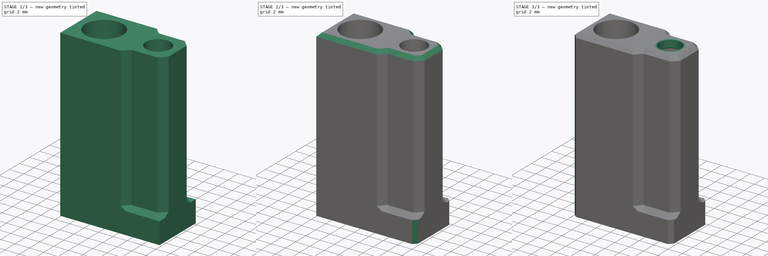
[diagram: build sequence overview — one tinted view per stage of 3, left to right]
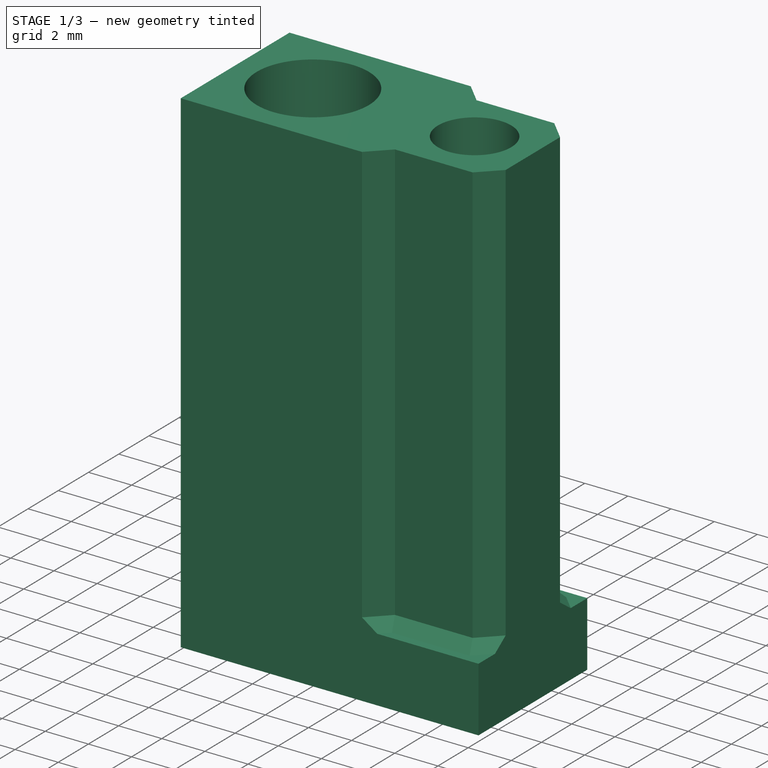
[diagram: stage 1 of 3 — iso view after this stage's code; geometry added in this stage tinted green]
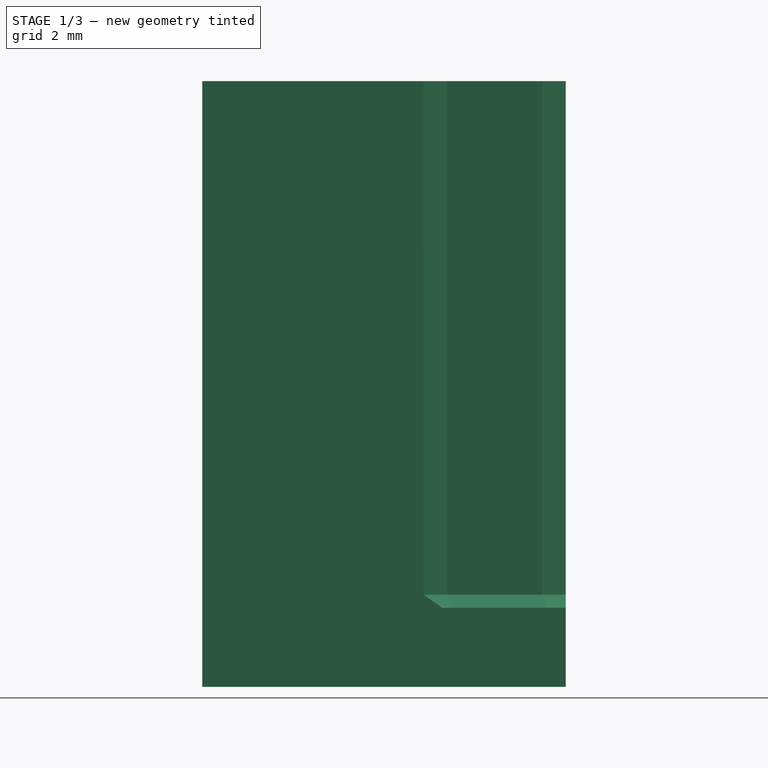
[diagram: stage 1 of 3 — front view after this stage's code; geometry added in this stage tinted green]
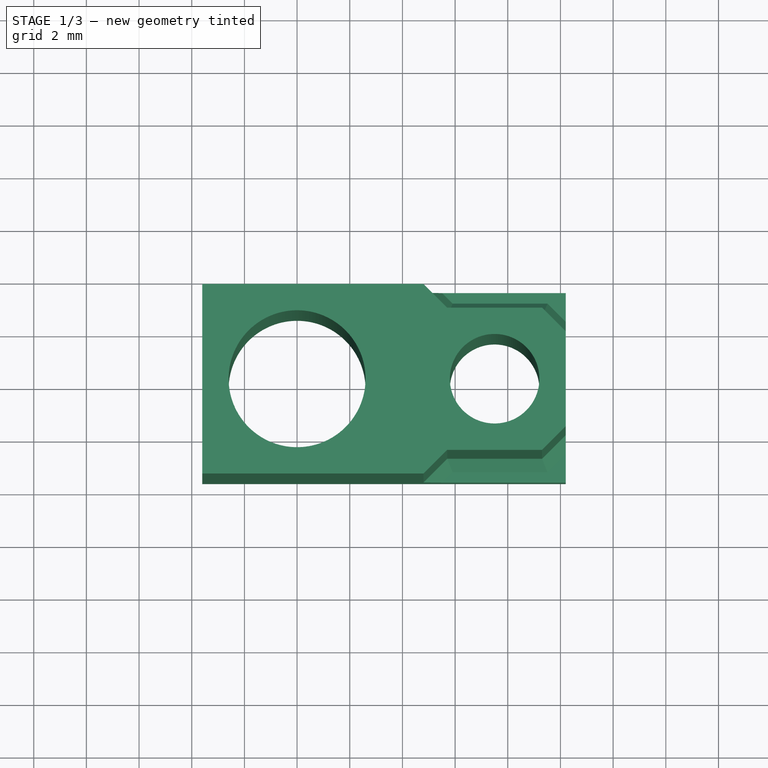
[diagram: stage 1 of 3 — top view after this stage's code; geometry added in this stage tinted green]
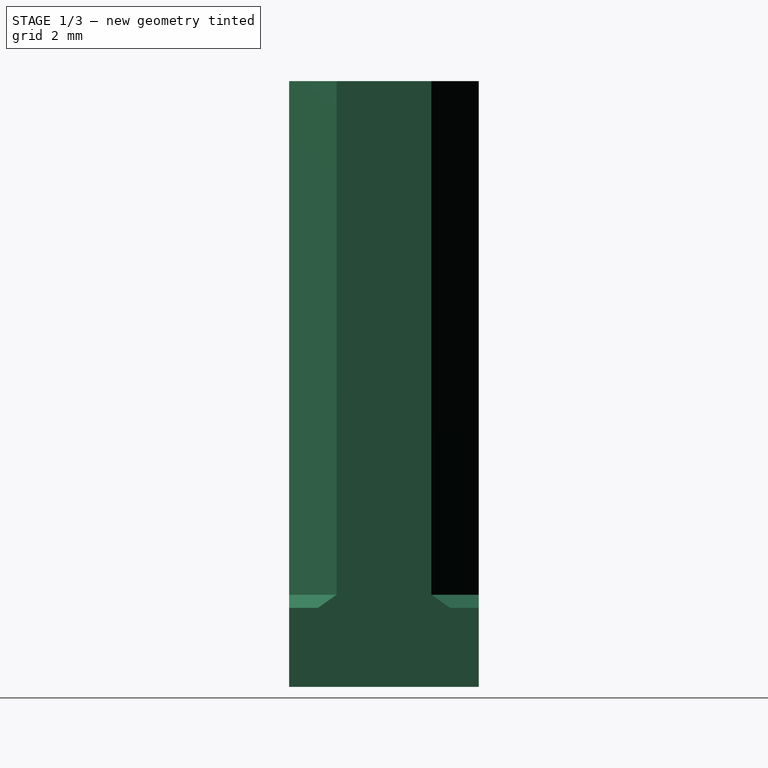
[diagram: stage 1 of 3 — right view after this stage's code; geometry added in this stage tinted green]
FCSTD DOCUMENT  (FreeCAD 0.16R6712 (Git))
Label: EDGE_IRFocus
License: All rights reserved
LicenseURL: http://en.wikipedia.org/wiki/All_rights_reserved
objects: PartDesign::Chamfer×5, Sketcher::SketchObject×3, PartDesign::Pad×3
note: 14 computed .brp shape members not serialized (recipe doc carries the construction recipe); baked Part::Feature solids carry a one-line shape summary decoded from their .brp

FEATURE [Sketcher::SketchObject] Sketch
  sketch-geometry (9):
    g0: LineSegment StartX=-3.6 StartY=3.6 StartZ=0 EndX=10.2 EndY=3.6 EndZ=0
    g1: LineSegment StartX=10.2 StartY=3.6 StartZ=0 EndX=10.2 EndY=-3.6 EndZ=0
    g2: LineSegment StartX=10.2 StartY=-3.6 StartZ=0 EndX=-3.6 EndY=-3.6 EndZ=0
    g3: LineSegment StartX=-3.6 StartY=-3.6 StartZ=0 EndX=-3.6 EndY=3.6 EndZ=0
    g4: Circle CenterX=0 CenterY=0 CenterZ=0 NormalX=0 NormalY=0 NormalZ=1 Radius=2.6
    g5: Circle CenterX=7.5 CenterY=0 CenterZ=0 NormalX=0 NormalY=0 NormalZ=1 Radius=1.7
    g6: GeomPoint [constr] X=0 Y=2.6 Z=0
    g7: GeomPoint [constr] X=-2.6 Y=0 Z=0
    g8: GeomPoint [constr] X=9.2 Y=0 Z=0
  constraints (23):
    c: Coincident(g0,g1)
    c: Coincident(g1,g2)
    c: Coincident(g2,g3)
    c: Coincident(g3,g0)
    c: Horizontal(g0)
    c: Horizontal(g2)
    c: Vertical(g1)
    c: Vertical(g3)
    c: Symmetric(g0,g2,g-1)
    c: Coincident(g4,g-1)
    c: Radius(g4) = 2.6
    c: PointOnObject(g5,g-1)
    c: Radius(g5) = 1.7
    c: Distance(g-1,g5) = 7.5
    c: PointOnObject(g6,g-2)
    c: PointOnObject(g7,g-1)
    c: PointOnObject(g8,g-1)
    c: PointOnObject(g8,g5)
    c: PointOnObject(g6,g4)
    c: PointOnObject(g7,g4)
    c: DistanceX(g8,g1) = 1
    c: DistanceY(g6,g0) = 1
    c: DistanceX(g2,g7) = 1
FEATURE [PartDesign::Pad] Pad
  Length = 3
  Length2 = 100
  Sketch = -> Sketch
  Type = 0
FEATURE [Sketcher::SketchObject] Sketch001
  ExternalGeometry = -> [Pad]
  Placement = pos=(0,0,3) rot=(0,0,1;0rad)
  Support = -> Pad [Face8]
  sketch-geometry (13):
    g0: Circle CenterX=0 CenterY=0 CenterZ=0 NormalX=0 NormalY=0 NormalZ=1 Radius=2.6
    g1: Circle CenterX=7.5 CenterY=0 CenterZ=0 NormalX=0 NormalY=0 NormalZ=1 Radius=1.7
    g2: LineSegment [constr] StartX=7.5 StartY=0 StartZ=0 EndX=7.5 EndY=1.7 EndZ=0
    g3: LineSegment StartX=5.7 StartY=-2.7 StartZ=0 EndX=9.3 EndY=-2.7 EndZ=0
    g4: LineSegment StartX=9.3 StartY=2.7 StartZ=0 EndX=5.7 EndY=2.7 EndZ=0
    g5: LineSegment StartX=5.7 StartY=2.7 StartZ=0 EndX=4.8 EndY=3.6 EndZ=0
    g6: LineSegment StartX=4.8 StartY=3.6 StartZ=0 EndX=-3.6 EndY=3.6 EndZ=0
    g7: LineSegment StartX=-3.6 StartY=3.6 StartZ=0 EndX=-3.6 EndY=-3.6 EndZ=0
    g8: LineSegment StartX=-3.6 StartY=-3.6 StartZ=0 EndX=4.8 EndY=-3.6 EndZ=0
    g9: LineSegment StartX=4.8 StartY=-3.6 StartZ=0 EndX=5.7 EndY=-2.7 EndZ=0
    g10: LineSegment StartX=9.3 StartY=2.7 StartZ=0 EndX=10.2 EndY=1.8 EndZ=0
    g11: LineSegment StartX=10.2 StartY=1.8 StartZ=0 EndX=10.2 EndY=-1.8 EndZ=0
    g12: LineSegment StartX=10.2 StartY=-1.8 StartZ=0 EndX=9.3 EndY=-2.7 EndZ=0
  constraints (34):
    c: Coincident(g0,g-1)
    c: Equal(g0,g-6)
    c: Coincident(g1,g-5)
    c: Equal(g1,g-5)
    c: Coincident(g2,g1)
    c: PointOnObject(g2,g-5)
    c: Vertical(g2)
    c: Horizontal(g3)
    c: Horizontal(g4)
    c: Coincident(g4,g5)
    c: Coincident(g5,g6)
    c: Coincident(g6,g-4)
    c: Horizontal(g6)
    c: Coincident(g6,g7)
    c: Coincident(g7,g-3)
    c: Coincident(g7,g8)
    c: Horizontal(g8)
    c: Coincident(g8,g9)
    c: Coincident(g9,g3)
    c: Symmetric(g3,g4,g-1)
    c: Equal(g3,g4)
    c: Equal(g6,g8)
    c: Angle(g9) = 0.785398
    c: Coincident(g10,g4)
    c: Coincident(g11,g10)
    c: Vertical(g11)
    c: Coincident(g12,g11)
    c: Coincident(g12,g3)
    c: Equal(g10,g12)
    c: Angle(g10) = -0.785398
    c: PointOnObject(g11,g-7)
    c: DistanceY(g2,g4) = 1
    c: Equal(g12,g9)
    c: Equal(g11,g3)
FEATURE [PartDesign::Pad] Pad001
  Length = 20
  Length2 = 100
  Sketch = -> Sketch001
  Type = 0
FEATURE [PartDesign::Chamfer] Chamfer
  Base = -> Pad001 [Edge32,Edge33,Edge34,Edge26,Edge27,Edge28]
  Size = 0.5
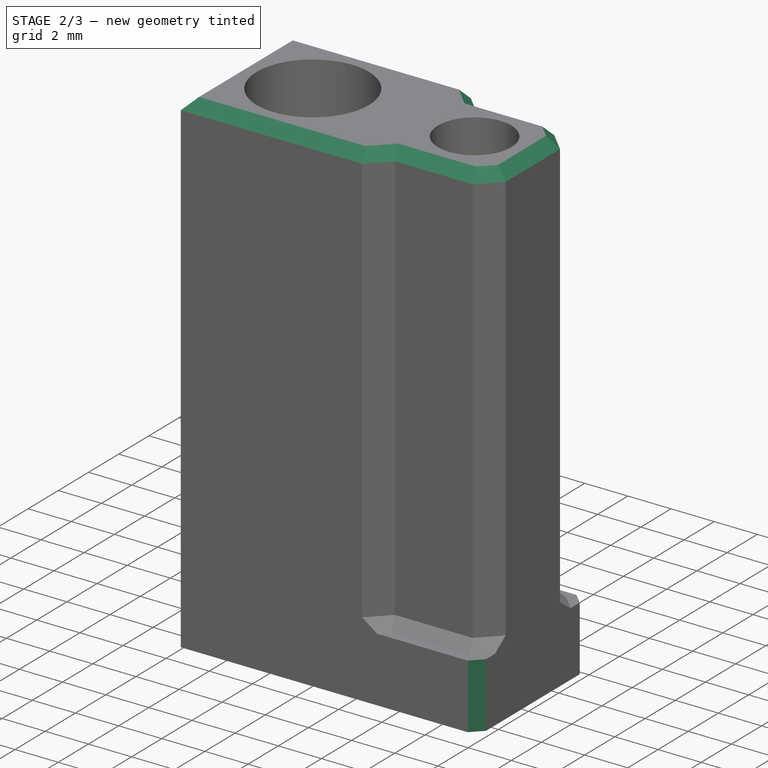
[diagram: stage 2 of 3 — iso view after this stage's code; geometry added in this stage tinted green]
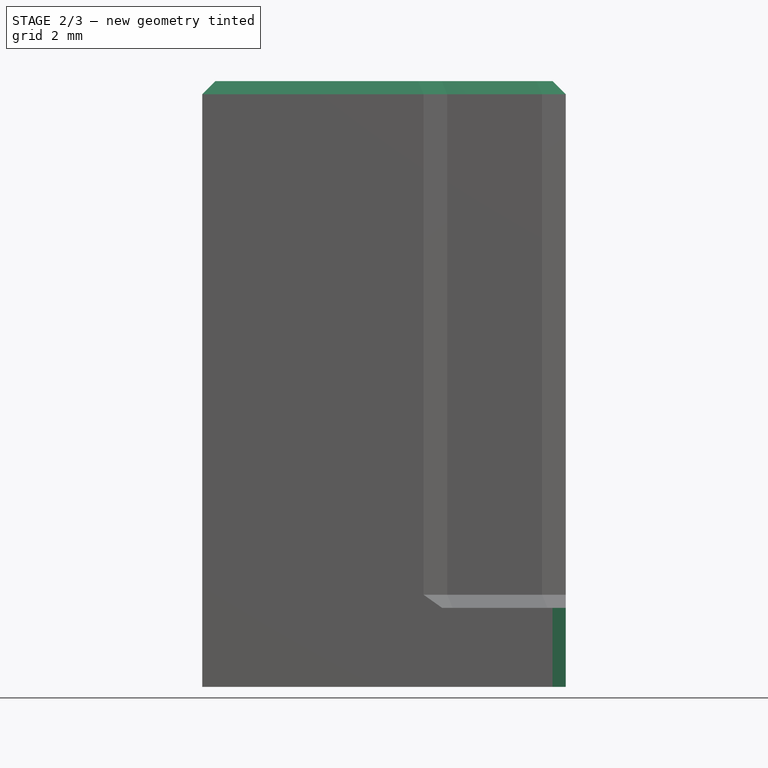
[diagram: stage 2 of 3 — front view after this stage's code; geometry added in this stage tinted green]
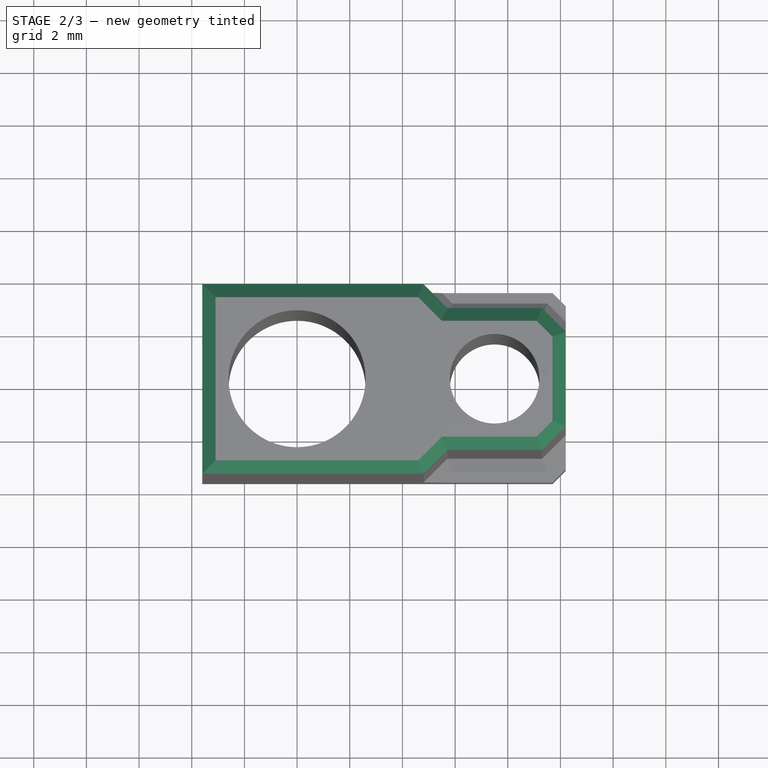
[diagram: stage 2 of 3 — top view after this stage's code; geometry added in this stage tinted green]
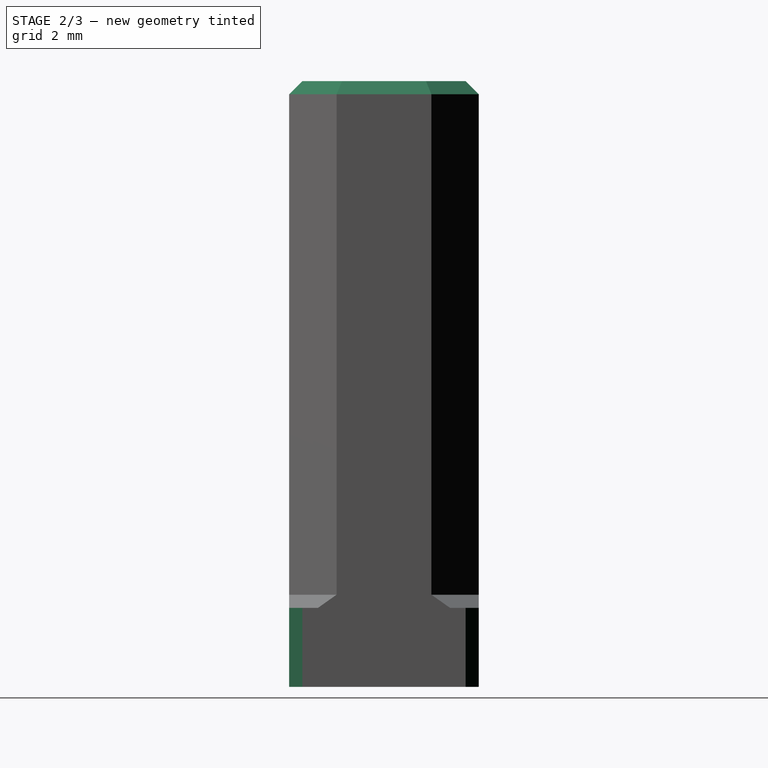
[diagram: stage 2 of 3 — right view after this stage's code; geometry added in this stage tinted green]
FEATURE [PartDesign::Chamfer] Chamfer001
  Base = -> Chamfer [Edge37,Edge36,Edge13,Edge34,Edge35,Edge42,Edge41,Edge40,Edge39,Edge38]
  Size = 0.5
FEATURE [PartDesign::Chamfer] Chamfer002
  Base = -> Chamfer001 [Edge53,Edge19]
  Size = 0.5
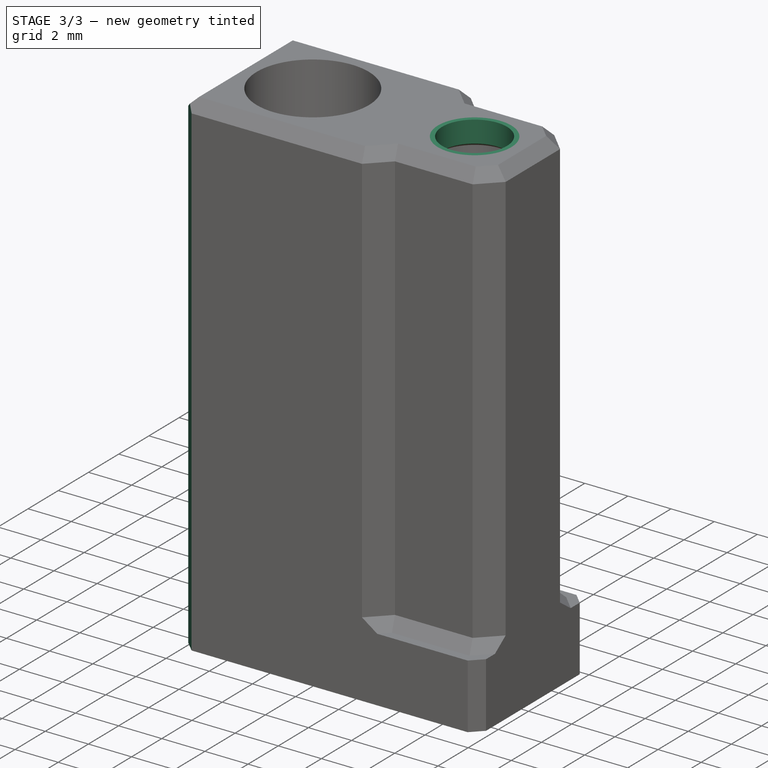
[diagram: stage 3 of 3 — iso view after this stage's code; geometry added in this stage tinted green]
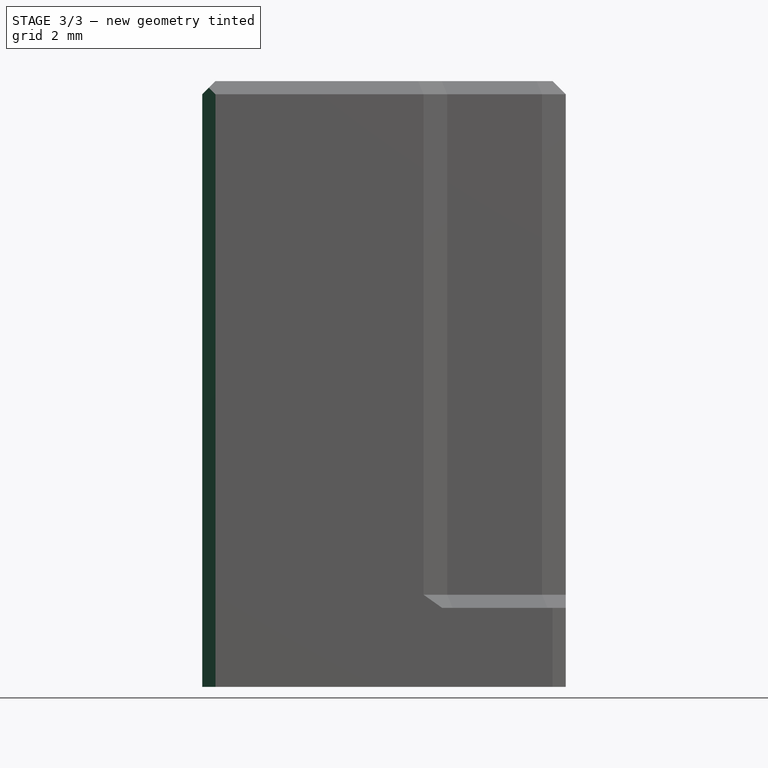
[diagram: stage 3 of 3 — front view after this stage's code; geometry added in this stage tinted green]
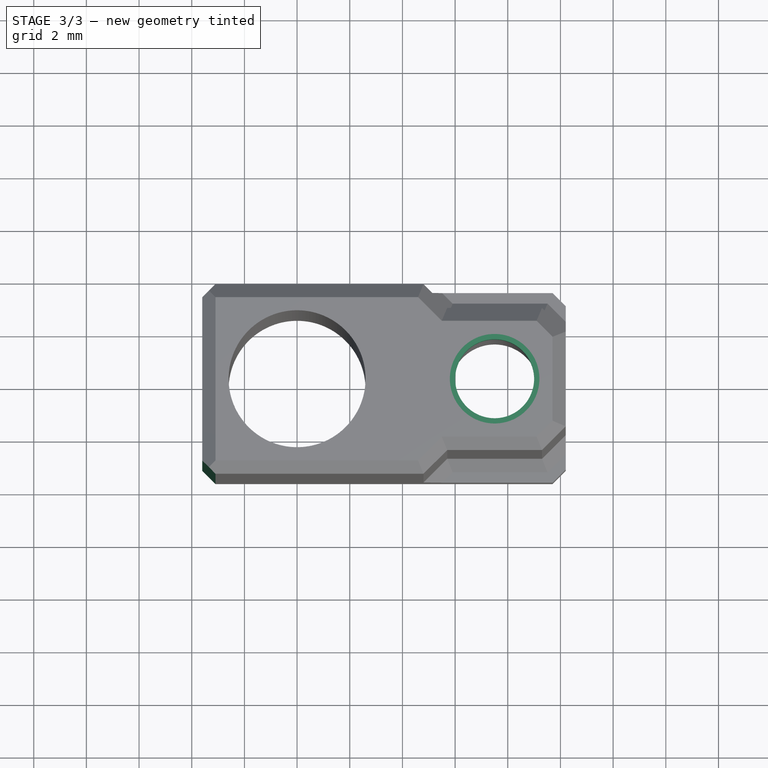
[diagram: stage 3 of 3 — top view after this stage's code; geometry added in this stage tinted green]
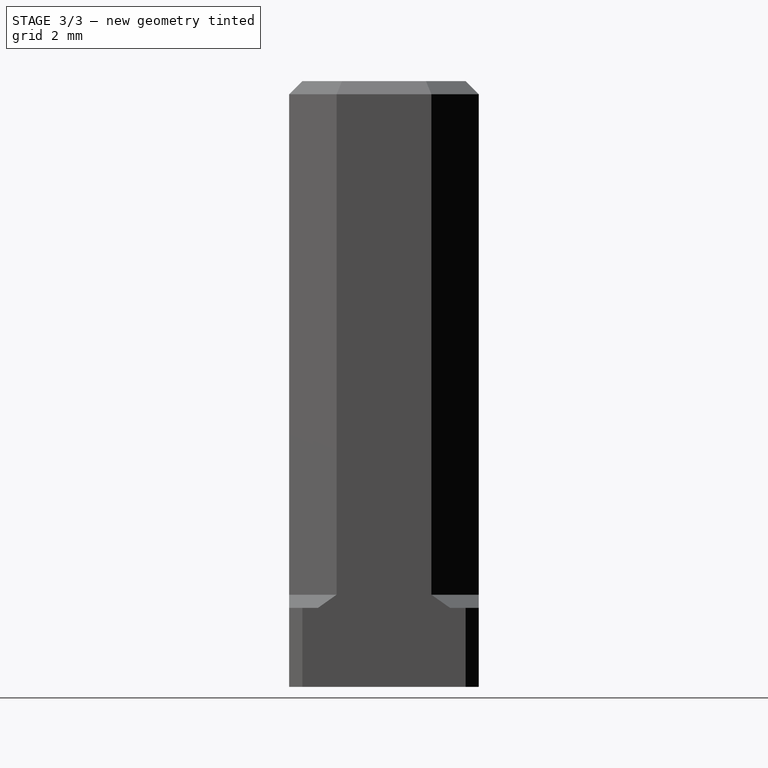
[diagram: stage 3 of 3 — right view after this stage's code; geometry added in this stage tinted green]
FEATURE [Sketcher::SketchObject] Sketch002
  ExternalGeometry = -> [Chamfer002]
  Placement = pos=(0,0,23) rot=(0,0,1;0rad)
  Support = -> Chamfer002 [Face23]
  sketch-geometry (2):
    g0: Circle CenterX=7.5 CenterY=0 CenterZ=0 NormalX=0 NormalY=0 NormalZ=1 Radius=2
    g1: Circle CenterX=7.5 CenterY=0 CenterZ=0 NormalX=0 NormalY=0 NormalZ=1 Radius=1.5
  constraints (4):
    c: Coincident(g0,g-3)
    c: Coincident(g1,g0)
    c: Radius(g0) = 2
    c: Radius(g1) = 1.5
FEATURE [PartDesign::Pad] Pad002
  Length = 1
  Length2 = 100
  Reversed = true
  Sketch = -> Sketch002
  Type = 0
FEATURE [PartDesign::Chamfer] Chamfer003
  Base = -> Pad002 [Edge5]
  Size = 0.15
FEATURE [PartDesign::Chamfer] Chamfer004
  Base = -> Chamfer003 [Edge79,Edge35,Edge38,Edge80]
  Size = 0.5
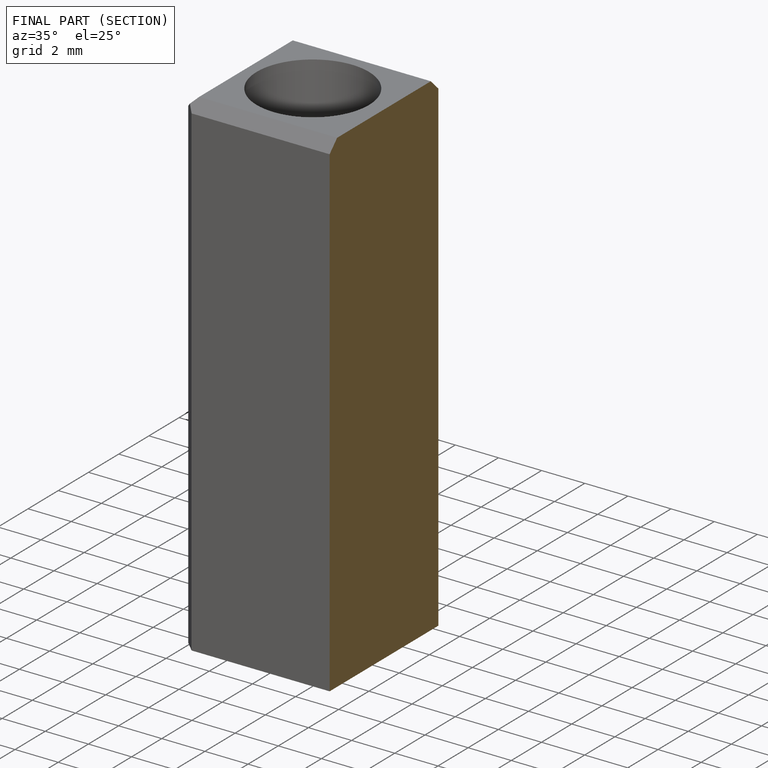
[diagram: finished part — half-section view (interior)]
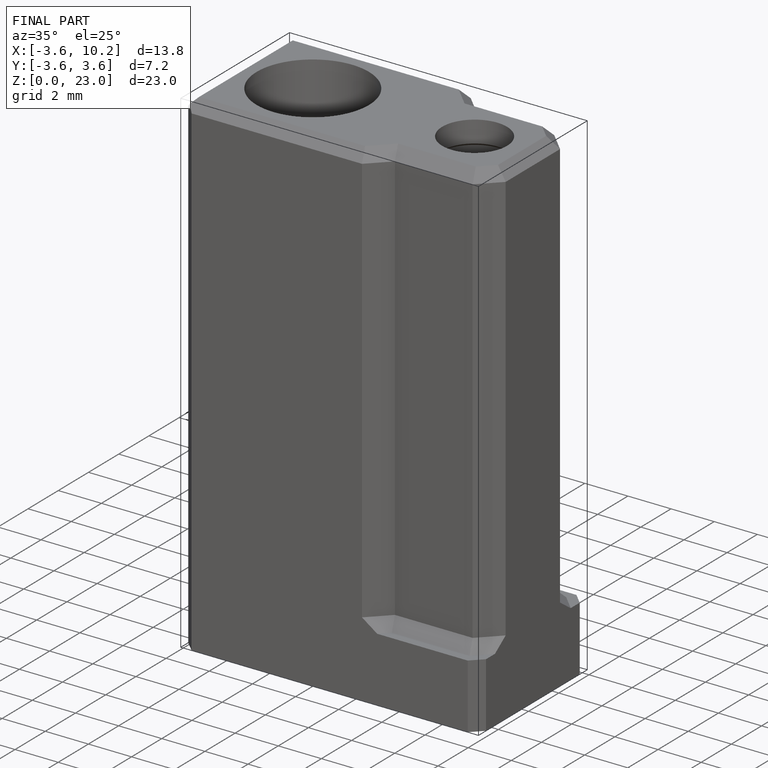
[diagram: finished part — iso view with bounding-box wireframe]
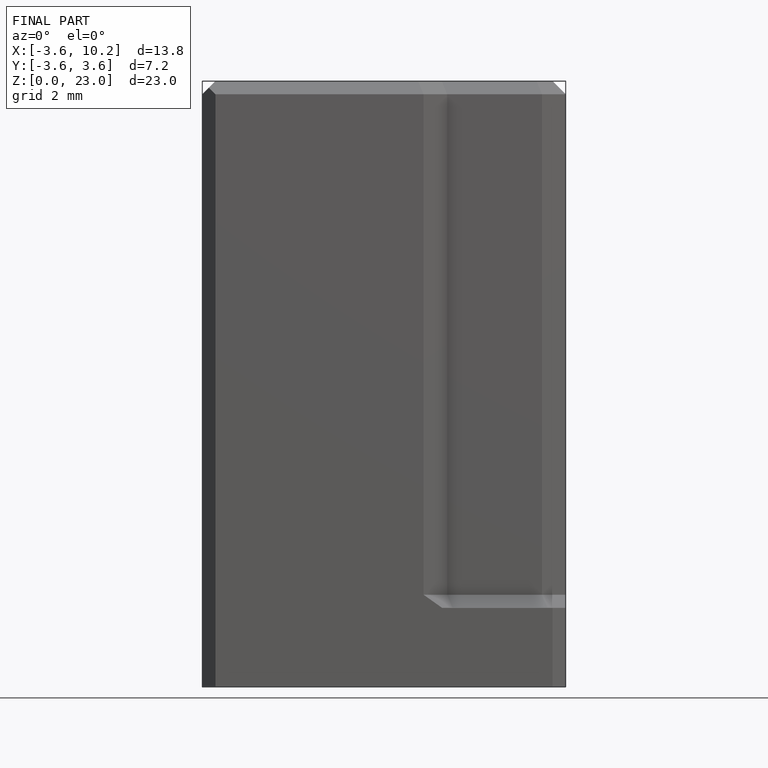
[diagram: finished part — front view with bounding-box wireframe]
